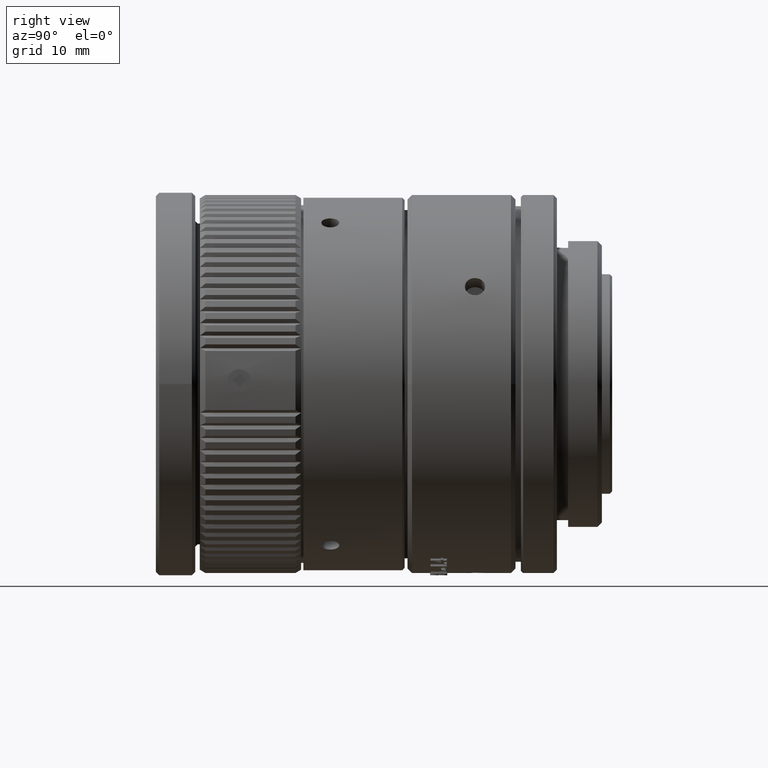
[diagram: clean part render]
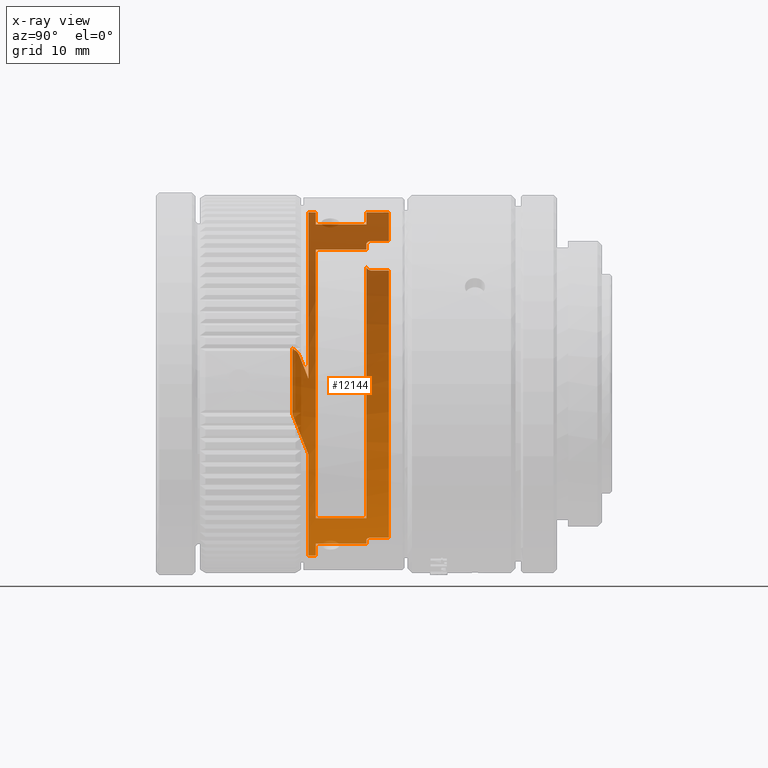
[diagram: x-ray — body ghosted, one internal face saturated and labeled with its STEP entity id]
A machine part, right view, then the same camera in x-ray: the body is ghosted and one INTERNAL B-rep face — a face not visible from any outside direction — is saturated and labeled: STEP entity #12144.
In plain terms, the highlighted cylindrical surface (partial cylindrical patch) has radius 15.2371 mm, axis along (0, 1, 0).
Its self-contained STEP definition (entity closure, byte-faithful):
#19 = CARTESIAN_POINT ( 'NONE',  ( -6.572118334650790317, 5.653598860483715072, -13.74724311347544159 ) ) ;
#126 = VERTEX_POINT ( 'NONE', #35305 ) ;
#414 = CARTESIAN_POINT ( 'NONE',  ( -12.98667100873324110, 5.600000000000101785, -8.038656927771224758 ) ) ;
#807 = B_SPLINE_CURVE_WITH_KNOTS ( 'NONE', 3,
 ( #37392, #17256, #21589, #38172 ),
 .UNSPECIFIED., .F., .F.,
 ( 4, 4 ),
 ( 0.000000000000000000, 1.000000000000000000 ),
 .UNSPECIFIED. ) ;
#933 = B_SPLINE_CURVE_WITH_KNOTS ( 'NONE', 3,
 ( #24918, #12432, #17577, #4540 ),
 .UNSPECIFIED., .F., .F.,
 ( 4, 4 ),
 ( 0.000000000000000000, 1.000000000000000000 ),
 .UNSPECIFIED. ) ;
#1059 = B_SPLINE_CURVE_WITH_KNOTS ( 'NONE', 3,
 ( #48649, #43751, #7340, #19049, #39690, #10872 ),
 .UNSPECIFIED., .F., .F.,
 ( 4, 2, 4 ),
 ( 0.000000000000000000, 0.5000000000000000000, 1.000000000000000000 ),
 .UNSPECIFIED. ) ;
#1159 = ORIENTED_EDGE ( 'NONE', *, *, #40210, .F. ) ;
#1305 = B_SPLINE_CURVE_WITH_KNOTS ( 'NONE', 3,
 ( #25148, #24882, #33048, #37146 ),
 .UNSPECIFIED., .F., .F.,
 ( 4, 4 ),
 ( 0.000000000000000000, 1.000000000000000000 ),
 .UNSPECIFIED. ) ;
#1425 = EDGE_CURVE ( 'NONE', #18943, #46923, #22357, .T. ) ;
#1474 = ORIENTED_EDGE ( 'NONE', *, *, #25356, .T. ) ;
#1556 = CARTESIAN_POINT ( 'NONE',  ( -5.819919738654890651, 7.600000000000002309, 14.16013321275257830 ) ) ;
#1791 = EDGE_CURVE ( 'NONE', #21737, #53763, #4181, .T. ) ;
#1953 = CARTESIAN_POINT ( 'NONE',  ( -7.924510467849978313E-15, 1.100000000000084022, -15.23714999648000123 ) ) ;
#2292 = CARTESIAN_POINT ( 'NONE',  ( -2.431977843869545088E-15, 7.599999999999999645, 15.23714999648000123 ) ) ;
#2379 = CARTESIAN_POINT ( 'NONE',  ( -11.43405562325463976, 6.100000000000000533, 10.07140069799359949 ) ) ;
#2419 = VERTEX_POINT ( 'NONE', #50767 ) ;
#2485 = VERTEX_POINT ( 'NONE', #7259 ) ;
#2521 = CARTESIAN_POINT ( 'NONE',  ( -6.789024590171258922, 6.099999999990751043, -13.64111011352385994 ) ) ;
#2637 = ORIENTED_EDGE ( 'NONE', *, *, #16876, .T. ) ;
#2699 = ORIENTED_EDGE ( 'NONE', *, *, #4015, .T. ) ;
#2862 = CARTESIAN_POINT ( 'NONE',  ( -10.38099155734835044, 1.100000000000000089, 11.21250462676728787 ) ) ;
#3130 = CARTESIAN_POINT ( 'NONE',  ( -14.59859168868473311, 1.100000000000000089, 4.512910461718703914 ) ) ;
#3347 = CARTESIAN_POINT ( 'NONE',  ( -6.788457626681278612, 5.966573592854959251, -13.64139228477252175 ) ) ;
#3379 = CARTESIAN_POINT ( 'NONE',  ( -5.586498249628033541, 2.600000000000128431, -14.17609880475349371 ) ) ;
#3397 = CARTESIAN_POINT ( 'NONE',  ( -12.20246955208098782, 7.600000000000003197, 9.199020791033332145 ) ) ;
#3414 = ORIENTED_EDGE ( 'NONE', *, *, #40379, .T. ) ;
#3491 = EDGE_CURVE ( 'NONE', #20019, #24710, #13663, .T. ) ;
#3551 = CARTESIAN_POINT ( 'NONE',  ( -12.45540716203946729, 5.600000000000102673, 8.839483102494895661 ) ) ;
#3780 = CARTESIAN_POINT ( 'NONE',  ( -6.334772688869609425, 5.599999999999999645, -13.85790009328878014 ) ) ;
#3798 = CARTESIAN_POINT ( 'NONE',  ( -13.26852724398862904, 0.4628475947067421381, -7.630645158081252433 ) ) ;
#3929 = CARTESIAN_POINT ( 'NONE',  ( -14.37487050486871176, 7.600000000000002309, -5.185107969134538308 ) ) ;
#4015 = EDGE_CURVE ( 'NONE', #2485, #28587, #807, .T. ) ;
#4120 = CARTESIAN_POINT ( 'NONE',  ( -14.98615779066459908, -0.9568223120000469706, -2.754235772139654870 ) ) ;
#4181 = B_SPLINE_CURVE_WITH_KNOTS ( 'NONE', 3,
 ( #48695, #28063, #44075, #2521 ),
 .UNSPECIFIED., .F., .F.,
 ( 4, 4 ),
 ( 0.000000000000000000, 1.000000000000000000 ),
 .UNSPECIFIED. ) ;
#4223 = CARTESIAN_POINT ( 'NONE',  ( -5.586498249628370161, 1.100000000000084022, -14.17609880475334094 ) ) ;
#4540 = CARTESIAN_POINT ( 'NONE',  ( -5.586498249628450097, 5.599999999999999645, -14.17609880475330009 ) ) ;
#4663 = CARTESIAN_POINT ( 'NONE',  ( -9.054773278979093121, 5.600000000000001421, 12.25786690684168967 ) ) ;
#4828 = CARTESIAN_POINT ( 'NONE',  ( -7.924510467849978313E-15, 1.100000000000084022, -15.23714999648000123 ) ) ;
#4834 = VERTEX_POINT ( 'NONE', #51796 ) ;
#5032 = CARTESIAN_POINT ( 'NONE',  ( -13.86989810836174009, 0.4628475947065580631, -6.308459913393660301 ) ) ;
#5098 = CARTESIAN_POINT ( 'NONE',  ( -4.723059269577960138E-17, -0.9568223119999880177, 1.599898426093590144E-17 ) ) ;
#5726 = CARTESIAN_POINT ( 'NONE',  ( -15.20504511926618108, 0.1271981118401559752, 1.305179000890525742 ) ) ;
#6547 = CARTESIAN_POINT ( 'NONE',  ( -5.691938526818709931, 0.4628475947067420826, -14.20853252661702903 ) ) ;
#6646 = B_SPLINE_CURVE_WITH_KNOTS ( 'NONE', 3,
 ( #50347, #29692, #46259, #26673, #9812, #26410 ),
 .UNSPECIFIED., .F., .F.,
 ( 4, 2, 4 ),
 ( 0.000000000000000000, 0.5000000000000000000, 1.000000000000000000 ),
 .UNSPECIFIED. ) ;
#7259 = CARTESIAN_POINT ( 'NONE',  ( -14.98615779066459908, -0.9568223120000469706, -2.754235772139654870 ) ) ;
#7286 = ORIENTED_EDGE ( 'NONE', *, *, #26647, .T. ) ;
#7340 = CARTESIAN_POINT ( 'NONE',  ( -3.782331444770883788, 1.100000000000000089, 14.79112855499859869 ) ) ;
#7414 = CARTESIAN_POINT ( 'NONE',  ( -2.431977843869545088E-15, 1.100000000000084022, 15.23714999648000123 ) ) ;
#7570 = ORIENTED_EDGE ( 'NONE', *, *, #26838, .T. ) ;
#7693 = EDGE_CURVE ( 'NONE', #49447, #32342, #37373, .T. ) ;
#7852 = CARTESIAN_POINT ( 'NONE',  ( -10.30559129324545786, 5.600000000000102673, -11.27246278273121050 ) ) ;
#7968 = CARTESIAN_POINT ( 'NONE',  ( -15.17644059422908143, 7.600000000000002309, -1.788266639280237325 ) ) ;
#7987 = B_SPLINE_CURVE_WITH_KNOTS ( 'NONE', 3,
 ( #17627, #29050, #33397, #8370 ),
 .UNSPECIFIED., .F., .F.,
 ( 4, 4 ),
 ( 0.000000000000000000, 1.000000000000000000 ),
 .UNSPECIFIED. ) ;
#8332 = CARTESIAN_POINT ( 'NONE',  ( -4.723059269577960138E-17, 0.8876158649023760949, 15.23714999648000123 ) ) ;
#8370 = CARTESIAN_POINT ( 'NONE',  ( -8.419035599033749762, 6.099999999982959942, 12.70002281877630068 ) ) ;
#8619 = ORIENTED_EDGE ( 'NONE', *, *, #7693, .F. ) ;
#8858 = CARTESIAN_POINT ( 'NONE',  ( -5.586498249628980339, 5.599999999999999645, 14.17609880475312067 ) ) ;
#8945 = VERTEX_POINT ( 'NONE', #37033 ) ;
#9183 = CARTESIAN_POINT ( 'NONE',  ( -2.431977843869545088E-15, 7.599999999999999645, 15.23714999648000123 ) ) ;
#9234 = EDGE_CURVE ( 'NONE', #32490, #50595, #42810, .T. ) ;
#9516 = ORIENTED_EDGE ( 'NONE', *, *, #3491, .F. ) ;
#9812 = CARTESIAN_POINT ( 'NONE',  ( -15.01139821753211478, -0.3895572795389679599, 2.617407227092398703 ) ) ;
#9819 = CARTESIAN_POINT ( 'NONE',  ( -7.829795316131877847, 7.600000000000002309, -13.12313041887514942 ) ) ;
#10625 = CARTESIAN_POINT ( 'NONE',  ( 2.686625003379329591E-14, 0.4628475947067430263, -15.23714999648010071 ) ) ;
#10705 = CARTESIAN_POINT ( 'NONE',  ( -14.59851103970126296, 1.100000000000000089, -4.512892024568934346 ) ) ;
#10872 = CARTESIAN_POINT ( 'NONE',  ( -2.431977843869545088E-15, 1.100000000000084022, 15.23714999648000123 ) ) ;
#10918 = EDGE_CURVE ( 'NONE', #4834, #32490, #42498, .T. ) ;
#10979 = CARTESIAN_POINT ( 'NONE',  ( -11.18743969815420414, 1.100000000000000089, 10.40801897457048852 ) ) ;
#10983 = CARTESIAN_POINT ( 'NONE',  ( -8.419563448237331826, 5.966573592867096210, 12.69967289962243484 ) ) ;
#11083 = CARTESIAN_POINT ( 'NONE',  ( -5.586498249629737956, 2.600000000000035616, 14.17609880475282047 ) ) ;
#11168 = VERTEX_POINT ( 'NONE', #40182 ) ;
#11233 = ORIENTED_EDGE ( 'NONE', *, *, #39132, .T. ) ;
#11271 = VERTEX_POINT ( 'NONE', #3780 ) ;
#11542 = CARTESIAN_POINT ( 'NONE',  ( -14.73261813032460843, 0.4628475947068753094, 4.353110042388552259 ) ) ;
#11786 = CARTESIAN_POINT ( 'NONE',  ( -5.586498249628370161, 1.100000000000084022, -14.17609880475334094 ) ) ;
#11807 = CARTESIAN_POINT ( 'NONE',  ( -15.23040239738685031, 0.4628475945068100117, 0.4534124268598170304 ) ) ;
#11954 = CARTESIAN_POINT ( 'NONE',  ( -11.09517219760716067, 5.599999999999999645, 10.44355753183126012 ) ) ;
#12008 = CARTESIAN_POINT ( 'NONE',  ( -13.86989810836174009, 0.4628475947065580631, -6.308459913393660301 ) ) ;
#12076 = CARTESIAN_POINT ( 'NONE',  ( -11.43405562325130020, 7.599999999999999645, 10.07140069799781834 ) ) ;
#12144 = ADVANCED_FACE ( 'NONE', ( #50481 ), #13246, .T. ) ;
#12345 = CARTESIAN_POINT ( 'NONE',  ( -13.42184839595209667, 7.600000000000001421, -7.305903935818290229 ) ) ;
#12349 = CARTESIAN_POINT ( 'NONE',  ( -12.01684141533980466, 0.4628475947068744212, 9.570534280471884259 ) ) ;
#12373 = CARTESIAN_POINT ( 'NONE',  ( -14.91036266054774195, -0.9568223119999830217, 3.138761753649644604 ) ) ;
#12432 = CARTESIAN_POINT ( 'NONE',  ( -6.088237498036699336, 5.600000000000001421, -13.97059713852835650 ) ) ;
#12606 = CARTESIAN_POINT ( 'NONE',  ( -9.208710490591750286, 0.4628475947068736995, 12.29631063024917736 ) ) ;
#12960 = CARTESIAN_POINT ( 'NONE',  ( -11.43405562325463976, 6.100000000000000533, 10.07140069799359949 ) ) ;
#13203 = CARTESIAN_POINT ( 'NONE',  ( -14.36036804567108938, 5.600000000000103562, -5.201293943274650111 ) ) ;
#13246 = CYLINDRICAL_SURFACE ( 'NONE', #42275, 15.23714999648000123 ) ;
#13291 = B_SPLINE_CURVE_WITH_KNOTS ( 'NONE', 3,
 ( #30833, #19433, #35445, #2292 ),
 .UNSPECIFIED., .F., .F.,
 ( 4, 4 ),
 ( 0.000000000000000000, 1.000000000000000000 ),
 .UNSPECIFIED. ) ;
#13663 = B_SPLINE_CURVE_WITH_KNOTS ( 'NONE', 3,
 ( #19805, #8332, #45311, #15731 ),
 .UNSPECIFIED., .F., .F.,
 ( 4, 4 ),
 ( 0.000000000000000000, 1.000000000000000000 ),
 .UNSPECIFIED. ) ;
#13911 = CARTESIAN_POINT ( 'NONE',  ( -6.789024590162590300, 7.599999999999999645, -13.64111011352681935 ) ) ;
#14600 = CARTESIAN_POINT ( 'NONE',  ( -11.09517219760716067, 5.599999999999999645, 10.44355753183126012 ) ) ;
#14678 = VERTEX_POINT ( 'NONE', #12960 ) ;
#14723 = CARTESIAN_POINT ( 'NONE',  ( -2.904883095029570317, 0.4628475947067419716, -15.02804760962742670 ) ) ;
#14803 = CARTESIAN_POINT ( 'NONE',  ( -9.483612566660649890, 1.100000000000020073, -11.92609880475171913 ) ) ;
#15411 = ORIENTED_EDGE ( 'NONE', *, *, #16713, .T. ) ;
#15535 = CARTESIAN_POINT ( 'NONE',  ( -9.483612566659729737, 5.599999999999999645, -11.92609880475269968 ) ) ;
#15731 = CARTESIAN_POINT ( 'NONE',  ( 2.612002137595029983E-15, 0.4628475947068740326, 15.23714999648000123 ) ) ;
#15899 = CARTESIAN_POINT ( 'NONE',  ( -13.22562005711930233, 1.100000000000000089, -7.652822558146197274 ) ) ;
#16027 = CARTESIAN_POINT ( 'NONE',  ( -13.86989810836174009, 0.4628475947065580631, -6.308459913393660301 ) ) ;
#16099 = CARTESIAN_POINT ( 'NONE',  ( -1.906631629373557679, 5.600000000000102673, 15.23714999648001012 ) ) ;
#16162 = CARTESIAN_POINT ( 'NONE',  ( -0.9559394675607665315, 1.100000000000000089, -15.23714999647999768 ) ) ;
#16170 = CARTESIAN_POINT ( 'NONE',  ( 2.612002137595029983E-15, 0.4628475947068740326, 15.23714999648000123 ) ) ;
#16209 = ORIENTED_EDGE ( 'NONE', *, *, #40125, .T. ) ;
#16292 = CARTESIAN_POINT ( 'NONE',  ( -10.57701292071130617, 0.4628475947067420271, -11.06378589941632029 ) ) ;
#16713 = EDGE_CURVE ( 'NONE', #31378, #2419, #30171, .T. ) ;
#16876 = EDGE_CURVE ( 'NONE', #11271, #40881, #933, .T. ) ;
#17256 = CARTESIAN_POINT ( 'NONE',  ( -15.34350742269960755, -0.9568223119999880177, -0.8098495920297128503 ) ) ;
#17301 = CARTESIAN_POINT ( 'NONE',  ( -14.95763074876770204, 5.600000000000105338, 3.089160318759110346 ) ) ;
#17568 = CARTESIAN_POINT ( 'NONE',  ( -15.12230012805298607, 5.600000000000102673, -2.142351028325058415 ) ) ;
#17577 = CARTESIAN_POINT ( 'NONE',  ( -5.838694267828206108, 5.600000000000001421, -14.07671373177656449 ) ) ;
#17627 = CARTESIAN_POINT ( 'NONE',  ( -8.419035599047520080, 7.599999999999999645, 12.70002281876429961 ) ) ;
#17981 = ORIENTED_EDGE ( 'NONE', *, *, #33182, .T. ) ;
#18193 = ORIENTED_EDGE ( 'NONE', *, *, #49603, .T. ) ;
#18668 = EDGE_LOOP ( 'NONE', ( #17981, #8619, #1159, #42886, #3414, #2699, #46905, #32063, #27409, #9516, #36358, #33714, #22392, #22134, #20384, #47494, #1474, #7570, #15411, #50151, #42386, #39518, #11233, #18193, #16209, #35871, #7286, #2637 ) ) ;
#18943 = VERTEX_POINT ( 'NONE', #9183 ) ;
#19049 = CARTESIAN_POINT ( 'NONE',  ( -1.904037548231217958, 1.100000000000000089, 15.14794570818371611 ) ) ;
#19433 = CARTESIAN_POINT ( 'NONE',  ( 6.388728303607763498E-14, 6.266666666666734997, 15.23714999648000123 ) ) ;
#19437 = CARTESIAN_POINT ( 'NONE',  ( -15.23719136127747120, 1.100000000000000089, 1.145966643563031795 ) ) ;
#19805 = CARTESIAN_POINT ( 'NONE',  ( -2.431977843869545088E-15, 1.100000000000084022, 15.23714999648000123 ) ) ;
#19851 = CARTESIAN_POINT ( 'NONE',  ( -9.483612566659729737, 5.599999999999999645, -11.92609880475269968 ) ) ;
#19879 = CARTESIAN_POINT ( 'NONE',  ( -9.483612566660649890, 1.100000000000020073, -11.92609880475171913 ) ) ;
#19972 = CARTESIAN_POINT ( 'NONE',  ( -14.40415082574271288, 7.600000000000000533, 5.103203471603152686 ) ) ;
#20019 = VERTEX_POINT ( 'NONE', #7414 ) ;
#20180 = CARTESIAN_POINT ( 'NONE',  ( -3.812636446830039105, 5.600000000000102673, 14.87513991563311855 ) ) ;
#20242 = CARTESIAN_POINT ( 'NONE',  ( -7.924510467849978313E-15, 1.100000000000084022, -15.23714999648000123 ) ) ;
#20245 = CARTESIAN_POINT ( 'NONE',  ( -13.97144109356641373, 7.600000000000003197, 6.190402285177492026 ) ) ;
#20250 = CARTESIAN_POINT ( 'NONE',  ( -13.15466351281802204, 0.4628475947068745877, 7.934382892175519508 ) ) ;
#20384 = ORIENTED_EDGE ( 'NONE', *, *, #1425, .T. ) ;
#20457 = CARTESIAN_POINT ( 'NONE',  ( -6.334772688869609425, 5.599999999999999645, -13.85790009328878014 ) ) ;
#21021 = B_SPLINE_CURVE_WITH_KNOTS ( 'NONE', 3,
 ( #44383, #53374, #3379, #11786 ),
 .UNSPECIFIED., .F., .F.,
 ( 4, 4 ),
 ( 0.000000000000000000, 1.000000000000000000 ),
 .UNSPECIFIED. ) ;
#21205 = VERTEX_POINT ( 'NONE', #43234 ) ;
#21291 = CARTESIAN_POINT ( 'NONE',  ( -4.696782239730070252, 1.100000000000000089, -14.52671691206342963 ) ) ;
#21436 = CARTESIAN_POINT ( 'NONE',  ( -2.431977843869545088E-15, 7.599999999999999645, 15.23714999648000123 ) ) ;
#21439 = CARTESIAN_POINT ( 'NONE',  ( -5.586498249628980339, 5.599999999999999645, 14.17609880475312067 ) ) ;
#21589 = CARTESIAN_POINT ( 'NONE',  ( -15.31760279919461532, -0.9568223119999880177, 1.204209648796211951 ) ) ;
#21674 = B_SPLINE_CURVE_WITH_KNOTS ( 'NONE', 3,
 ( #12076, #3397, #28658, #20245, #19972, #36553, #36820, #53393, #7968, #24583, #3929, #12345, #30230, #47050, #34046, #46780, #9819, #13911 ),
 .UNSPECIFIED., .F., .F.,
 ( 4, 2, 2, 2, 2, 2, 2, 2, 4 ),
 ( 0.000000000000000000, 0.1250000000000000278, 0.2500000000000000555, 0.3750000000000000000, 0.5000000000000000000, 0.6250000000000000000, 0.7500000000000000000, 0.8750000000000001110, 1.000000000000000000 ),
 .UNSPECIFIED. ) ;
#21737 = VERTEX_POINT ( 'NONE', #53189 ) ;
#21961 = CARTESIAN_POINT ( 'NONE',  ( -8.419035599047520080, 7.599999999999999645, 12.70002281876429961 ) ) ;
#22134 = ORIENTED_EDGE ( 'NONE', *, *, #39884, .T. ) ;
#22357 = B_SPLINE_CURVE_WITH_KNOTS ( 'NONE', 3,
 ( #21436, #42856, #46403, #1556, #51558, #21961 ),
 .UNSPECIFIED., .F., .F.,
 ( 4, 2, 4 ),
 ( 0.000000000000000000, 0.5000000000000000000, 1.000000000000000000 ),
 .UNSPECIFIED. ) ;
#22392 = ORIENTED_EDGE ( 'NONE', *, *, #40371, .T. ) ;
#22615 = CARTESIAN_POINT ( 'NONE',  ( 2.686625003379329591E-14, 0.4628475947067430263, -15.23714999648010071 ) ) ;
#22922 = VERTEX_POINT ( 'NONE', #25374 ) ;
#23220 = CARTESIAN_POINT ( 'NONE',  ( -15.10929188661807032, 1.100000000000000089, 2.278599940038500637 ) ) ;
#23404 = CARTESIAN_POINT ( 'NONE',  ( -9.483612566661861365, 2.600000000000035616, -11.92609880475102102 ) ) ;
#23814 = B_SPLINE_CURVE_WITH_KNOTS ( 'NONE', 3,
 ( #14600, #51559, #26557, #26033, #26296, #2379 ),
 .UNSPECIFIED., .F., .F.,
 ( 4, 2, 4 ),
 ( 0.000000000000000000, 0.5000000000000000000, 1.000000000000000000 ),
 .UNSPECIFIED. ) ;
#24464 = CARTESIAN_POINT ( 'NONE',  ( -13.55035284067611023, 5.600000000000103562, 7.047096351310786488 ) ) ;
#24476 = CARTESIAN_POINT ( 'NONE',  ( -15.23040239738685031, 0.4628475945068100117, 0.4534124268598170304 ) ) ;
#24583 = CARTESIAN_POINT ( 'NONE',  ( -14.72947556714778372, 7.600000000000002309, -4.069987248152444614 ) ) ;
#24710 = VERTEX_POINT ( 'NONE', #34997 ) ;
#24882 = CARTESIAN_POINT ( 'NONE',  ( -11.43405562324940128, 6.600000000000005862, 10.07140069799971904 ) ) ;
#24918 = CARTESIAN_POINT ( 'NONE',  ( -6.334772688869609425, 5.599999999999999645, -13.85790009328878014 ) ) ;
#25099 = CARTESIAN_POINT ( 'NONE',  ( -1.904024670980283940, 1.100000000000000089, -15.14787790883978857 ) ) ;
#25148 = CARTESIAN_POINT ( 'NONE',  ( -11.43405562325463976, 6.100000000000000533, 10.07140069799359949 ) ) ;
#25356 = EDGE_CURVE ( 'NONE', #21205, #48676, #39209, .T. ) ;
#25374 = CARTESIAN_POINT ( 'NONE',  ( -2.431977843869545088E-15, 5.600000000000069811, 15.23714999648000123 ) ) ;
#25532 = EDGE_CURVE ( 'NONE', #38025, #24710, #42476, .T. ) ;
#25700 = CARTESIAN_POINT ( 'NONE',  ( -12.40029001637659967, 5.600000000000102673, -8.916638189431470352 ) ) ;
#25723 = CARTESIAN_POINT ( 'NONE',  ( -6.789024590171258922, 6.099999999990751043, -13.64111011352385994 ) ) ;
#25887 = VERTEX_POINT ( 'NONE', #21439 ) ;
#26033 = CARTESIAN_POINT ( 'NONE',  ( -11.39803644984401743, 5.838479826857004618, 10.11257676585033494 ) ) ;
#26296 = CARTESIAN_POINT ( 'NONE',  ( -11.43363793379167070, 5.966549905794118480, 10.07187490060928070 ) ) ;
#26374 = CARTESIAN_POINT ( 'NONE',  ( -8.833907179453168723, 5.599999999999999645, 12.41502412240989983 ) ) ;
#26410 = CARTESIAN_POINT ( 'NONE',  ( -15.03553287384865023, -0.3326033967459774976, 2.470524481693570085 ) ) ;
#26557 = CARTESIAN_POINT ( 'NONE',  ( -11.27335219433672542, 5.653687397820979399, 10.25138888442108431 ) ) ;
#26647 = EDGE_CURVE ( 'NONE', #53763, #11271, #29307, .T. ) ;
#26673 = CARTESIAN_POINT ( 'NONE',  ( -14.98768247286197308, -0.4719319780914234541, 2.748437104782500917 ) ) ;
#26752 = CARTESIAN_POINT ( 'NONE',  ( -8.619402600964393812, 5.653598860452739849, 12.56524299120985688 ) ) ;
#26838 = EDGE_CURVE ( 'NONE', #48676, #31378, #34492, .T. ) ;
#26858 = B_SPLINE_CURVE_WITH_KNOTS ( 'NONE', 3,
 ( #50598, #42691, #5726, #46493 ),
 .UNSPECIFIED., .F., .F.,
 ( 4, 4 ),
 ( 0.000000000000000000, 1.000000000000000000 ),
 .UNSPECIFIED. ) ;
#27289 = CARTESIAN_POINT ( 'NONE',  ( -14.22156439600730238, 1.100000000000000089, -5.588590722050519766 ) ) ;
#27409 = ORIENTED_EDGE ( 'NONE', *, *, #25532, .T. ) ;
#27657 = CARTESIAN_POINT ( 'NONE',  ( -9.483612566659473941, 4.100000000000108891, 11.92609880475291995 ) ) ;
#27847 = CARTESIAN_POINT ( 'NONE',  ( -8.726230358568235701, 5.599999999999913491, 12.49164153625500617 ) ) ;
#28063 = CARTESIAN_POINT ( 'NONE',  ( -6.789024590178383001, 7.099999999996292388, -13.64111011352022373 ) ) ;
#28334 = CARTESIAN_POINT ( 'NONE',  ( -6.739855167191232788, 5.838076233705609575, -13.66578885212766892 ) ) ;
#28392 = CARTESIAN_POINT ( 'NONE',  ( -7.539425439823416397, 0.4628475947068732554, 13.38494183971140572 ) ) ;
#28587 = VERTEX_POINT ( 'NONE', #12373 ) ;
#28589 = CARTESIAN_POINT ( 'NONE',  ( -14.08687989843446431, 0.2710892874346489401, -5.831399686175683605 ) ) ;
#28658 = CARTESIAN_POINT ( 'NONE',  ( -12.87057533926471287, 7.600000000000002309, 8.238357671261791637 ) ) ;
#28663 = CARTESIAN_POINT ( 'NONE',  ( -3.912783263131542899, 0.4628475947068727558, 14.85562961139214266 ) ) ;
#28864 = CARTESIAN_POINT ( 'NONE',  ( -6.454963726074181452, 5.600000000000043165, -13.80295793792607384 ) ) ;
#29050 = CARTESIAN_POINT ( 'NONE',  ( -8.419035599020853411, 7.099999999993181987, 12.70002281878462114 ) ) ;
#29307 = B_SPLINE_CURVE_WITH_KNOTS ( 'NONE', 3,
 ( #32949, #3347, #28334, #19, #28864, #20457 ),
 .UNSPECIFIED., .F., .F.,
 ( 4, 2, 4 ),
 ( 0.000000000000000000, 0.5000000000000000000, 1.000000000000000000 ),
 .UNSPECIFIED. ) ;
#29692 = CARTESIAN_POINT ( 'NONE',  ( -14.92466255060203650, -0.8133347470552164671, 3.070831606843367201 ) ) ;
#29781 = CARTESIAN_POINT ( 'NONE',  ( -14.93816443217828116, 5.600000000000102673, -3.181960478805593073 ) ) ;
#29824 = DIRECTION ( 'NONE',  ( 0.000000000000000000, 0.000000000000000000, 1.000000000000000000 ) ) ;
#30171 = B_SPLINE_CURVE_WITH_KNOTS ( 'NONE', 3,
 ( #31474, #27657, #48846, #53477 ),
 .UNSPECIFIED., .F., .F.,
 ( 4, 4 ),
 ( 0.000000000000000000, 1.000000000000000000 ),
 .UNSPECIFIED. ) ;
#30230 = CARTESIAN_POINT ( 'NONE',  ( -12.82347483782335118, 7.600000000000002309, -8.311482404904573684 ) ) ;
#30648 = CARTESIAN_POINT ( 'NONE',  ( -15.03553287384865023, -0.3326033967459774976, 2.470524481693570085 ) ) ;
#30798 = CARTESIAN_POINT ( 'NONE',  ( -9.483612566658829124, 5.599999999999999645, 11.92609880475340134 ) ) ;
#30833 = CARTESIAN_POINT ( 'NONE',  ( -2.431977843869545088E-15, 5.600000000000069811, 15.23714999648000123 ) ) ;
#31305 = CARTESIAN_POINT ( 'NONE',  ( -12.47688383975818205, 0.4628475947067420271, -8.866111346142593774 ) ) ;
#31378 = VERTEX_POINT ( 'NONE', #30798 ) ;
#31474 = CARTESIAN_POINT ( 'NONE',  ( -9.483612566658829124, 5.599999999999999645, 11.92609880475340134 ) ) ;
#31854 = CARTESIAN_POINT ( 'NONE',  ( -3.201448740708248211E-14, 0.6752317298045369398, -15.23714999648000123 ) ) ;
#32063 = ORIENTED_EDGE ( 'NONE', *, *, #32605, .T. ) ;
#32214 = CARTESIAN_POINT ( 'NONE',  ( -11.18749099864884933, 1.100000000000000089, -10.40782225813795137 ) ) ;
#32315 = CARTESIAN_POINT ( 'NONE',  ( -8.833907179453168723, 5.599999999999999645, 12.41502412240989983 ) ) ;
#32342 = VERTEX_POINT ( 'NONE', #4223 ) ;
#32490 = VERTEX_POINT ( 'NONE', #48439 ) ;
#32605 = EDGE_CURVE ( 'NONE', #40889, #38025, #26858, .T. ) ;
#32833 = CARTESIAN_POINT ( 'NONE',  ( -5.586498249629737956, 4.100000000000068923, 14.17609880475282047 ) ) ;
#32949 = CARTESIAN_POINT ( 'NONE',  ( -6.789024590171258922, 6.099999999990751043, -13.64111011352385994 ) ) ;
#33048 = CARTESIAN_POINT ( 'NONE',  ( -11.43405562324940128, 7.099999999999998757, 10.07140069799971904 ) ) ;
#33182 = EDGE_CURVE ( 'NONE', #40881, #32342, #21021, .T. ) ;
#33397 = CARTESIAN_POINT ( 'NONE',  ( -8.419035599020853411, 6.599999999986373211, 12.70002281878462114 ) ) ;
#33602 = CARTESIAN_POINT ( 'NONE',  ( -11.05972978096245463, 5.600000000000100897, -10.53356569560227385 ) ) ;
#33714 = ORIENTED_EDGE ( 'NONE', *, *, #53542, .T. ) ;
#33848 = CARTESIAN_POINT ( 'NONE',  ( -11.09517219760716067, 5.599999999999999645, 10.44355753183126012 ) ) ;
#33987 = B_SPLINE_CURVE_WITH_KNOTS ( 'NONE', 3,
 ( #22615, #31854, #35103, #1953 ),
 .UNSPECIFIED., .F., .F.,
 ( 4, 4 ),
 ( 0.000000000000000000, 1.000000000000000000 ),
 .UNSPECIFIED. ) ;
#34046 = CARTESIAN_POINT ( 'NONE',  ( -10.60317788050597443, 7.600000000000000533, -11.00431122413736951 ) ) ;
#34169 = DIRECTION ( 'NONE',  ( 0.000000000000000000, 1.000000000000000000, 0.000000000000000000 ) ) ;
#34492 = B_SPLINE_CURVE_WITH_KNOTS ( 'NONE', 3,
 ( #26374, #4663, #46224, #42935 ),
 .UNSPECIFIED., .F., .F.,
 ( 4, 4 ),
 ( 0.000000000000000000, 1.000000000000000000 ),
 .UNSPECIFIED. ) ;
#34997 = CARTESIAN_POINT ( 'NONE',  ( 2.612002137595029983E-15, 0.4628475947068740326, 15.23714999648000123 ) ) ;
#35103 = CARTESIAN_POINT ( 'NONE',  ( -3.201448740708248211E-14, 0.8876158649023320191, -15.23714999648000123 ) ) ;
#35221 = B_SPLINE_CURVE_WITH_KNOTS ( 'NONE', 3,
 ( #44607, #20180, #16099, #49231 ),
 .UNSPECIFIED., .F., .F.,
 ( 4, 4 ),
 ( 0.000000000000000000, 1.000000000000000000 ),
 .UNSPECIFIED. ) ;
#35305 = CARTESIAN_POINT ( 'NONE',  ( -5.586498249629141100, 1.100000000000020073, 14.17609880475310113 ) ) ;
#35445 = CARTESIAN_POINT ( 'NONE',  ( 6.388728303607763498E-14, 6.933333333333369097, 15.23714999648000123 ) ) ;
#35529 = VERTEX_POINT ( 'NONE', #5032 ) ;
#35726 = CARTESIAN_POINT ( 'NONE',  ( -12.61847427999980020, 1.100000000000000089, 8.617264721754619217 ) ) ;
#35871 = ORIENTED_EDGE ( 'NONE', *, *, #1791, .T. ) ;
#36358 = ORIENTED_EDGE ( 'NONE', *, *, #38998, .F. ) ;
#36428 = CARTESIAN_POINT ( 'NONE',  ( -15.24000824478182636, 5.600000000000103562, 1.007858020982507208 ) ) ;
#36553 = CARTESIAN_POINT ( 'NONE',  ( -15.01163084285919780, 7.600000000000001421, 2.858878472591181552 ) ) ;
#36820 = CARTESIAN_POINT ( 'NONE',  ( -15.18637340714125195, 7.600000000000001421, 1.701854700672153609 ) ) ;
#37033 = CARTESIAN_POINT ( 'NONE',  ( 2.686625003379329591E-14, 0.4628475947067430263, -15.23714999648010071 ) ) ;
#37146 = CARTESIAN_POINT ( 'NONE',  ( -11.43405562325130020, 7.599999999999999645, 10.07140069799781834 ) ) ;
#37358 = CARTESIAN_POINT ( 'NONE',  ( -1.956748323081601404, 0.4628475947068722007, 15.23714999648001189 ) ) ;
#37373 = B_SPLINE_CURVE_WITH_KNOTS ( 'NONE', 3,
 ( #20242, #16162, #25099, #45466, #21291, #41670 ),
 .UNSPECIFIED., .F., .F.,
 ( 4, 2, 4 ),
 ( 0.000000000000000000, 0.5000000000000000000, 1.000000000000000000 ),
 .UNSPECIFIED. ) ;
#37392 = CARTESIAN_POINT ( 'NONE',  ( -14.98615779066459908, -0.9568223120000469706, -2.754235772139654870 ) ) ;
#38025 = VERTEX_POINT ( 'NONE', #24476 ) ;
#38172 = CARTESIAN_POINT ( 'NONE',  ( -14.91036266054774195, -0.9568223119999830217, 3.138761753649644604 ) ) ;
#38406 = CARTESIAN_POINT ( 'NONE',  ( -8.419035599047520080, 7.599999999999999645, 12.70002281876429961 ) ) ;
#38998 = EDGE_CURVE ( 'NONE', #126, #20019, #1059, .T. ) ;
#39132 = EDGE_CURVE ( 'NONE', #50595, #14678, #23814, .T. ) ;
#39209 = B_SPLINE_CURVE_WITH_KNOTS ( 'NONE', 3,
 ( #52582, #10983, #43589, #26752, #27847, #51750 ),
 .UNSPECIFIED., .F., .F.,
 ( 4, 2, 4 ),
 ( 0.000000000000000000, 0.5000000000000000000, 1.000000000000000000 ),
 .UNSPECIFIED. ) ;
#39324 = CARTESIAN_POINT ( 'NONE',  ( -5.586498249628450097, 5.599999999999999645, -14.17609880475330009 ) ) ;
#39518 = ORIENTED_EDGE ( 'NONE', *, *, #9234, .T. ) ;
#39520 = CARTESIAN_POINT ( 'NONE',  ( -12.61842297950884628, 1.099999999999999867, -8.617461438182470346 ) ) ;
#39690 = CARTESIAN_POINT ( 'NONE',  ( -0.9563093827308679629, 1.100000000000000089, 15.23714999647999946 ) ) ;
#39752 = B_SPLINE_CURVE_WITH_KNOTS ( 'NONE', 3,
 ( #48295, #11083, #32833, #8858 ),
 .UNSPECIFIED., .F., .F.,
 ( 4, 4 ),
 ( 0.000000000000000000, 1.000000000000000000 ),
 .UNSPECIFIED. ) ;
#39792 = CARTESIAN_POINT ( 'NONE',  ( -13.22569456889213235, 1.100000000000000089, 7.652858505078750539 ) ) ;
#39884 = EDGE_CURVE ( 'NONE', #22922, #18943, #13291, .T. ) ;
#40076 = CARTESIAN_POINT ( 'NONE',  ( -15.23710863168252594, 1.100000000000000089, -1.145966643560034637 ) ) ;
#40125 = EDGE_CURVE ( 'NONE', #11168, #21737, #21674, .T. ) ;
#40182 = CARTESIAN_POINT ( 'NONE',  ( -11.43405562325130020, 7.599999999999999645, 10.07140069799781834 ) ) ;
#40210 = EDGE_CURVE ( 'NONE', #8945, #49447, #33987, .T. ) ;
#40371 = EDGE_CURVE ( 'NONE', #25887, #22922, #35221, .T. ) ;
#40379 = EDGE_CURVE ( 'NONE', #35529, #2485, #47522, .T. ) ;
#40818 = EDGE_CURVE ( 'NONE', #46923, #21205, #7987, .T. ) ;
#40881 = VERTEX_POINT ( 'NONE', #39324 ) ;
#40889 = VERTEX_POINT ( 'NONE', #30648 ) ;
#41337 = CARTESIAN_POINT ( 'NONE',  ( -14.68441901518618131, -0.4163189939960056374, -4.114125571163348205 ) ) ;
#41413 = CARTESIAN_POINT ( 'NONE',  ( -15.17217536632913699, 0.4628475947068756424, 2.409294226214131474 ) ) ;
#41670 = CARTESIAN_POINT ( 'NONE',  ( -5.586498249628370161, 1.100000000000084022, -14.17609880475334094 ) ) ;
#42266 = CARTESIAN_POINT ( 'NONE',  ( -15.27322432853260636, 5.600000000000100897, -0.04740993352192208327 ) ) ;
#42275 = AXIS2_PLACEMENT_3D ( 'NONE', #5098, #34169, #29824 ) ;
#42386 = ORIENTED_EDGE ( 'NONE', *, *, #10918, .T. ) ;
#42476 = B_SPLINE_CURVE_WITH_KNOTS ( 'NONE', 3,
 ( #11807, #41413, #11542, #20250, #12349, #12606, #28392, #28663, #37358, #16170 ),
 .UNSPECIFIED., .F., .F.,
 ( 4, 2, 2, 2, 4 ),
 ( 0.000000000000000000, 0.2500000000000000000, 0.5000000000000000000, 0.7500000000000000000, 1.000000000000000000 ),
 .UNSPECIFIED. ) ;
#42498 = B_SPLINE_CURVE_WITH_KNOTS ( 'NONE', 3,
 ( #19879, #23404, #43758, #15535 ),
 .UNSPECIFIED., .F., .F.,
 ( 4, 4 ),
 ( 0.000000000000000000, 1.000000000000000000 ),
 .UNSPECIFIED. ) ;
#42691 = CARTESIAN_POINT ( 'NONE',  ( -15.11657862048902601, -0.1379522186441274056, 1.977282663234942950 ) ) ;
#42810 = B_SPLINE_CURVE_WITH_KNOTS ( 'NONE', 3,
 ( #19851, #7852, #33602, #25700, #414, #44816, #13203, #29781, #17568, #42266, #36428, #17301, #50438, #48900, #24464, #3551, #46600, #11954 ),
 .UNSPECIFIED., .F., .F.,
 ( 4, 2, 2, 2, 2, 2, 2, 2, 4 ),
 ( 0.000000000000000000, 0.1250000000000000833, 0.2500000000000001665, 0.3750000000000001110, 0.5000000000000001110, 0.6250000000000001110, 0.7500000000000000000, 0.8750000000000000000, 1.000000000000000000 ),
 .UNSPECIFIED. ) ;
#42856 = CARTESIAN_POINT ( 'NONE',  ( -1.486639953738918551, 7.599999999999999645, 15.23714999648001012 ) ) ;
#42886 = ORIENTED_EDGE ( 'NONE', *, *, #46162, .T. ) ;
#42935 = CARTESIAN_POINT ( 'NONE',  ( -9.483612566658829124, 5.599999999999999645, 11.92609880475340134 ) ) ;
#43234 = CARTESIAN_POINT ( 'NONE',  ( -8.419035599033749762, 6.099999999982959942, 12.70002281877630068 ) ) ;
#43237 = CARTESIAN_POINT ( 'NONE',  ( -9.468996386336385740, 0.4628475947067419161, -12.02575021312872927 ) ) ;
#43589 = CARTESIAN_POINT ( 'NONE',  ( -8.464992725039250487, 5.838076233723724862, 12.66978021872095894 ) ) ;
#43611 = B_SPLINE_CURVE_WITH_KNOTS ( 'NONE', 3,
 ( #10625, #47846, #14723, #6547, #49431, #43237, #16292, #31305, #3798, #16027 ),
 .UNSPECIFIED., .F., .F.,
 ( 4, 2, 2, 2, 4 ),
 ( 0.000000000000000000, 0.2499999999999998890, 0.4999999999999998890, 0.7499999999999998890, 1.000000000000000000 ),
 .UNSPECIFIED. ) ;
#43751 = CARTESIAN_POINT ( 'NONE',  ( -4.697126395560516698, 1.100000000000000089, 14.52658128758946532 ) ) ;
#43758 = CARTESIAN_POINT ( 'NONE',  ( -9.483612566661861365, 4.100000000000068923, -11.92609880475102102 ) ) ;
#43853 = CARTESIAN_POINT ( 'NONE',  ( -15.10937253560284788, 1.100000000000000089, -2.278618377182505039 ) ) ;
#44075 = CARTESIAN_POINT ( 'NONE',  ( -6.789024590178383001, 6.599999999992593125, -13.64111011352022373 ) ) ;
#44383 = CARTESIAN_POINT ( 'NONE',  ( -5.586498249628450097, 5.599999999999999645, -14.17609880475330009 ) ) ;
#44607 = CARTESIAN_POINT ( 'NONE',  ( -5.586498249628980339, 5.599999999999999645, 14.17609880475312067 ) ) ;
#44816 = CARTESIAN_POINT ( 'NONE',  ( -13.96672492104410956, 5.600000000000100897, -6.180956566047208334 ) ) ;
#45140 = CARTESIAN_POINT ( 'NONE',  ( -14.85586314959697596, -0.6753573170366042877, -3.463185989862039627 ) ) ;
#45311 = CARTESIAN_POINT ( 'NONE',  ( -4.723059269577960138E-17, 0.6752317298046249805, 15.23714999648000123 ) ) ;
#45466 = CARTESIAN_POINT ( 'NONE',  ( -3.782344322020818606, 1.100000000000000089, -14.79119635434271984 ) ) ;
#46084 = EDGE_CURVE ( 'NONE', #28587, #40889, #6646, .T. ) ;
#46162 = EDGE_CURVE ( 'NONE', #8945, #35529, #43611, .T. ) ;
#46224 = CARTESIAN_POINT ( 'NONE',  ( -9.271444559601711433, 5.600000000000001421, 12.09481442676117346 ) ) ;
#46259 = CARTESIAN_POINT ( 'NONE',  ( -14.94353693599533628, -0.6875230067152253710, 2.979133476167607153 ) ) ;
#46403 = CARTESIAN_POINT ( 'NONE',  ( -2.973098783661890732, 7.600000000000003197, 15.01803988508060250 ) ) ;
#46493 = CARTESIAN_POINT ( 'NONE',  ( -15.23040239738685031, 0.4628475945068100117, 0.4534124268598170304 ) ) ;
#46600 = CARTESIAN_POINT ( 'NONE',  ( -11.81497020210170135, 5.600000000000103562, 9.678848496330838103 ) ) ;
#46780 = CARTESIAN_POINT ( 'NONE',  ( -8.810980935703380368, 7.600000000000004086, -12.48554610876107240 ) ) ;
#46792 = EDGE_CURVE ( 'NONE', #4834, #2419, #51578, .T. ) ;
#46905 = ORIENTED_EDGE ( 'NONE', *, *, #46084, .T. ) ;
#46923 = VERTEX_POINT ( 'NONE', #38406 ) ;
#47050 = CARTESIAN_POINT ( 'NONE',  ( -11.41410742382258547, 7.600000000000003197, -10.16072824165498645 ) ) ;
#47494 = ORIENTED_EDGE ( 'NONE', *, *, #40818, .T. ) ;
#47522 = B_SPLINE_CURVE_WITH_KNOTS ( 'NONE', 3,
 ( #12008, #28589, #49496, #41337, #45140, #4120 ),
 .UNSPECIFIED., .F., .F.,
 ( 4, 2, 4 ),
 ( 0.000000000000000000, 0.5000000000000000000, 1.000000000000000000 ),
 .UNSPECIFIED. ) ;
#47846 = CARTESIAN_POINT ( 'NONE',  ( -1.452522198724198965, 0.4628475947067420271, -15.23714999648000479 ) ) ;
#48295 = CARTESIAN_POINT ( 'NONE',  ( -5.586498249629141100, 1.100000000000020073, 14.17609880475310113 ) ) ;
#48439 = CARTESIAN_POINT ( 'NONE',  ( -9.483612566659729737, 5.599999999999999645, -11.92609880475269968 ) ) ;
#48473 = CARTESIAN_POINT ( 'NONE',  ( -10.38070091300598463, 1.100000000000000089, -11.21273574663130468 ) ) ;
#48649 = CARTESIAN_POINT ( 'NONE',  ( -5.586498249629141100, 1.100000000000020073, 14.17609880475310113 ) ) ;
#48676 = VERTEX_POINT ( 'NONE', #32315 ) ;
#48695 = CARTESIAN_POINT ( 'NONE',  ( -6.789024590162590300, 7.599999999999999645, -13.64111011352681935 ) ) ;
#48757 = CARTESIAN_POINT ( 'NONE',  ( -14.22148988423187177, 1.100000000000000089, 5.588554775123355078 ) ) ;
#48846 = CARTESIAN_POINT ( 'NONE',  ( -9.483612566659473941, 2.600000000000084910, 11.92609880475291995 ) ) ;
#48900 = CARTESIAN_POINT ( 'NONE',  ( -14.00482827114011286, 5.600000000000102673, 6.094129485607558294 ) ) ;
#49231 = CARTESIAN_POINT ( 'NONE',  ( -2.431977843869545088E-15, 5.600000000000069811, 15.23714999648000123 ) ) ;
#49431 = CARTESIAN_POINT ( 'NONE',  ( -7.026323560125438128, 0.4628475947067419716, -13.59821083751253212 ) ) ;
#49447 = VERTEX_POINT ( 'NONE', #4828 ) ;
#49496 = CARTESIAN_POINT ( 'NONE',  ( -14.29991558915621042, 0.05690430823962087936, -5.298169983293181673 ) ) ;
#49603 = EDGE_CURVE ( 'NONE', #14678, #11168, #1305, .T. ) ;
#50151 = ORIENTED_EDGE ( 'NONE', *, *, #46792, .F. ) ;
#50347 = CARTESIAN_POINT ( 'NONE',  ( -14.91036266054774195, -0.9568223119999830217, 3.138761753649644604 ) ) ;
#50438 = CARTESIAN_POINT ( 'NONE',  ( -14.70847792126667919, 5.600000000000104450, 4.115131386856035967 ) ) ;
#50481 = FACE_OUTER_BOUND ( 'NONE', #18668, .T. ) ;
#50595 = VERTEX_POINT ( 'NONE', #33848 ) ;
#50598 = CARTESIAN_POINT ( 'NONE',  ( -15.03553287384865023, -0.3326033967459774976, 2.470524481693570085 ) ) ;
#50767 = CARTESIAN_POINT ( 'NONE',  ( -9.483612566659159526, 1.100000000000040057, 11.92609880475310113 ) ) ;
#51558 = CARTESIAN_POINT ( 'NONE',  ( -7.179935023137461236, 7.600000000000003197, 13.52144117432781556 ) ) ;
#51559 = CARTESIAN_POINT ( 'NONE',  ( -11.18569370601921165, 5.600000000000073364, 10.34738803016912811 ) ) ;
#51578 = B_SPLINE_CURVE_WITH_KNOTS ( 'NONE', 3,
 ( #14803, #48473, #32214, #39520, #15899, #27289, #10705, #43853, #40076, #19437, #23220, #3130, #48757, #39792, #35726, #10979, #2862, #52580 ),
 .UNSPECIFIED., .F., .F.,
 ( 4, 2, 2, 2, 2, 2, 2, 2, 4 ),
 ( 0.000000000000000000, 0.1250000000000000000, 0.2500000000000000000, 0.3750000000000000000, 0.5000000000000000000, 0.6250000000000000000, 0.7500000000000000000, 0.8750000000000000000, 1.000000000000000000 ),
 .UNSPECIFIED. ) ;
#51750 = CARTESIAN_POINT ( 'NONE',  ( -8.833907179453168723, 5.599999999999999645, 12.41502412240989983 ) ) ;
#51796 = CARTESIAN_POINT ( 'NONE',  ( -9.483612566660649890, 1.100000000000020073, -11.92609880475171913 ) ) ;
#52580 = CARTESIAN_POINT ( 'NONE',  ( -9.483612566659159526, 1.100000000000040057, 11.92609880475310113 ) ) ;
#52582 = CARTESIAN_POINT ( 'NONE',  ( -8.419035599033749762, 6.099999999982959942, 12.70002281877630068 ) ) ;
#53189 = CARTESIAN_POINT ( 'NONE',  ( -6.789024590162590300, 7.599999999999999645, -13.64111011352681935 ) ) ;
#53374 = CARTESIAN_POINT ( 'NONE',  ( -5.586498249628033541, 4.100000000000130207, -14.17609880475349371 ) ) ;
#53393 = CARTESIAN_POINT ( 'NONE',  ( -15.26878016302755015, 7.600000000000003197, -0.6217708713532169584 ) ) ;
#53477 = CARTESIAN_POINT ( 'NONE',  ( -9.483612566659159526, 1.100000000000040057, 11.92609880475310113 ) ) ;
#53542 = EDGE_CURVE ( 'NONE', #126, #25887, #39752, .T. ) ;
#53763 = VERTEX_POINT ( 'NONE', #25723 ) ;